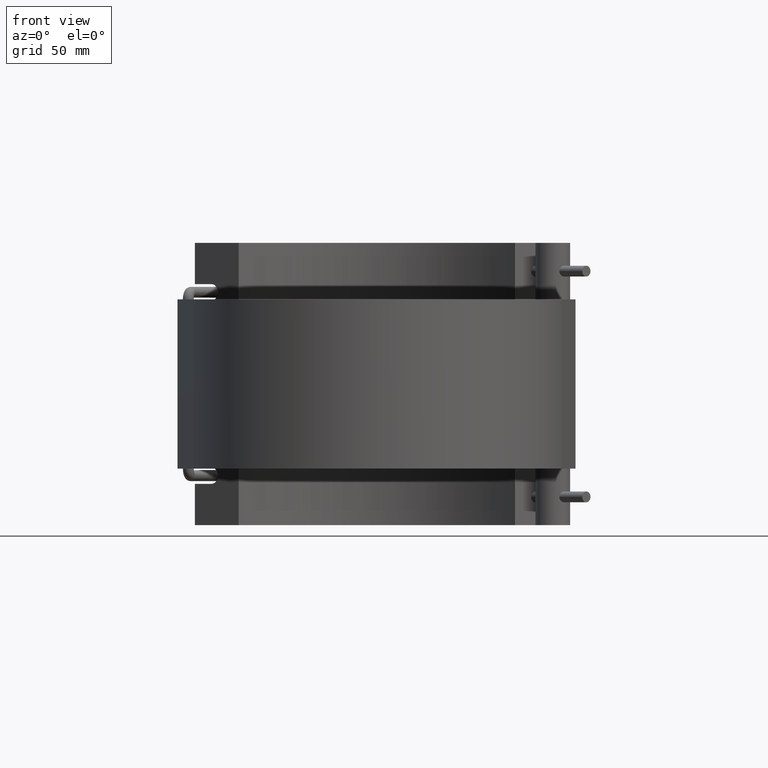
[diagram: clean part render]
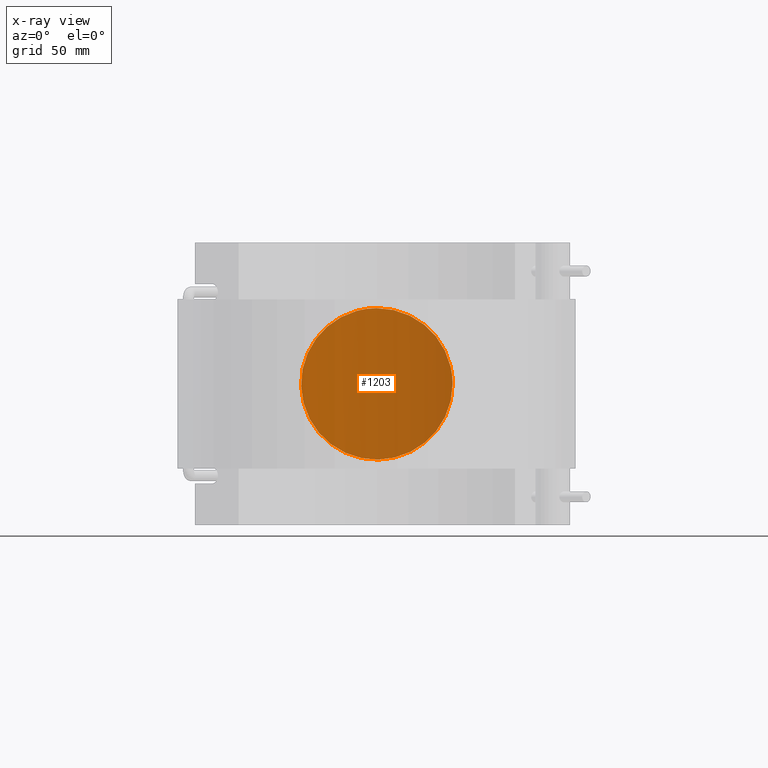
[diagram: x-ray — body ghosted, one internal face saturated and labeled with its STEP entity id]
A machine part, front view, then the same camera in x-ray: the body is ghosted and one INTERNAL B-rep face — a face not visible from any outside direction — is saturated and labeled: STEP entity #1203.
In plain terms, the highlighted cylindrical surface (partial cylindrical patch) has radius 129.375 mm, axis along (0, 0, -1).
Its self-contained STEP definition (entity closure, byte-faithful):
#307=B_SPLINE_CURVE_WITH_KNOTS('',3,(#2134,#2135,#2136,#2137,#2138,#2139,
#2140,#2141,#2142,#2143,#2144,#2145,#2146,#2147,#2148,#2149,#2150,#2151,
#2152,#2153,#2154,#2155,#2156,#2157,#2158,#2159,#2160,#2161,#2162,#2163,
#2164,#2165,#2166,#2167,#2168,#2169,#2170,#2171,#2172,#2173,#2174,#2175,
#2176,#2177,#2178,#2179,#2180,#2181,#2182,#2183,#2184,#2185,#2186,#2187,
#2188,#2189,#2190,#2191,#2192,#2193,#2194,#2195,#2196,#2197,#2198,#2199),
 .UNSPECIFIED.,.T.,.F.,(4,2,2,2,2,2,2,2,2,2,2,2,2,2,2,2,2,2,2,2,2,2,2,2,
2,2,2,2,2,2,2,2,4),(0.,0.899309219976071,1.79861843995214,2.69792765992821,
3.59723687990428,4.49593116307056,5.39462544623684,6.29331972940312,7.19201401256939,
8.09070829573567,8.98940257890195,9.88809686206823,10.7867911452345,11.6861003652106,
12.5854095851866,13.4847188051627,14.3840280251388,15.2833372451149,16.1826464650909,
17.081955685067,17.9812649050431,18.8799591882093,19.7786534713756,20.6773477545419,
21.5760420377082,22.4747363208745,23.3734306040407,24.272124887207,25.1708191703733,
26.0701283903494,26.9694376103254,27.8687468303015,28.7680560502776),
 .UNSPECIFIED.);
#369=FACE_OUTER_BOUND('',#463,.T.);
#463=EDGE_LOOP('',(#1097));
#630=VERTEX_POINT('',#2133);
#789=EDGE_CURVE('',#630,#630,#307,.T.);
#1097=ORIENTED_EDGE('',*,*,#789,.F.);
#1136=CYLINDRICAL_SURFACE('',#1320,129.375);
#1203=ADVANCED_FACE('',(#369),#1136,.F.);
#1320=AXIS2_PLACEMENT_3D('',#2132,#1651,#1652);
#1651=DIRECTION('center_axis',(0.,0.,-1.));
#1652=DIRECTION('ref_axis',(-1.,0.,0.));
#2132=CARTESIAN_POINT('Origin',(0.,0.,88.));
#2133=CARTESIAN_POINT('',(47.25,120.438067590775,0.));
#2134=CARTESIAN_POINT('Ctrl Pts',(47.25,120.438067590775,0.));
#2135=CARTESIAN_POINT('Ctrl Pts',(47.25,120.438067590775,-2.99769739992024));
#2136=CARTESIAN_POINT('Ctrl Pts',(46.9601423688959,120.553122759243,-6.0877288888063));
#2137=CARTESIAN_POINT('Ctrl Pts',(45.7504068360747,121.017398137063,-12.2153874063151));
#2138=CARTESIAN_POINT('Ctrl Pts',(44.8308991078556,121.366106286638,-15.2531262959108));
#2139=CARTESIAN_POINT('Ctrl Pts',(42.4118844592426,122.232455317223,-21.0641797091584));
#2140=CARTESIAN_POINT('Ctrl Pts',(40.9104595507312,122.749819125059,-23.8426510845055));
#2141=CARTESIAN_POINT('Ctrl Pts',(37.451482241319,123.848981720726,-28.9745438294554));
#2142=CARTESIAN_POINT('Ctrl Pts',(35.4936059998091,124.429669483943,-31.3279848223197));
#2143=CARTESIAN_POINT('Ctrl Pts',(31.3294090231067,125.542823333608,-35.4921817990221));
#2144=CARTESIAN_POINT('Ctrl Pts',(28.9766467888591,126.115486518451,-37.4498819348869));
#2145=CARTESIAN_POINT('Ctrl Pts',(23.8443863829376,127.185719468934,-40.9094726736341));
#2146=CARTESIAN_POINT('Ctrl Pts',(21.0648669829627,127.682340082888,-42.4116253369176));
#2147=CARTESIAN_POINT('Ctrl Pts',(15.2517101522392,128.506396447785,-44.831461639547));
#2148=CARTESIAN_POINT('Ctrl Pts',(12.2129466177305,128.8338845232,-45.7510675304642));
#2149=CARTESIAN_POINT('Ctrl Pts',(6.08495921802214,129.268322251608,-46.9605101824942));
#2150=CARTESIAN_POINT('Ctrl Pts',(2.99564761055426,129.375,-47.25));
#2151=CARTESIAN_POINT('Ctrl Pts',(-2.99564761055425,129.375,-47.25));
#2152=CARTESIAN_POINT('Ctrl Pts',(-6.08495921802212,129.268322251608,-46.9605101824942));
#2153=CARTESIAN_POINT('Ctrl Pts',(-12.2129466177305,128.8338845232,-45.7510675304642));
#2154=CARTESIAN_POINT('Ctrl Pts',(-15.2517101522392,128.506396447785,-44.831461639547));
#2155=CARTESIAN_POINT('Ctrl Pts',(-21.0648669829627,127.682340082888,-42.4116253369176));
#2156=CARTESIAN_POINT('Ctrl Pts',(-23.8443863829376,127.185719468934,-40.9094726736341));
#2157=CARTESIAN_POINT('Ctrl Pts',(-28.9766467888591,126.115486518451,-37.4498819348869));
#2158=CARTESIAN_POINT('Ctrl Pts',(-31.3294090231067,125.542823333608,-35.4921817990221));
#2159=CARTESIAN_POINT('Ctrl Pts',(-35.4936059998091,124.429669483943,-31.3279848223197));
#2160=CARTESIAN_POINT('Ctrl Pts',(-37.451482241319,123.848981720726,-28.9745438294554));
#2161=CARTESIAN_POINT('Ctrl Pts',(-40.9104595507312,122.749819125059,-23.8426510845055));
#2162=CARTESIAN_POINT('Ctrl Pts',(-42.4118844592426,122.232455317223,-21.0641797091584));
#2163=CARTESIAN_POINT('Ctrl Pts',(-44.8308991078556,121.366106286638,-15.2531262959108));
#2164=CARTESIAN_POINT('Ctrl Pts',(-45.7504068360747,121.017398137063,-12.2153874063151));
#2165=CARTESIAN_POINT('Ctrl Pts',(-46.9601423688958,120.553122759243,-6.08772888880631));
#2166=CARTESIAN_POINT('Ctrl Pts',(-47.25,120.438067590775,-2.99769739992024));
#2167=CARTESIAN_POINT('Ctrl Pts',(-47.25,120.438067590775,2.99769739992023));
#2168=CARTESIAN_POINT('Ctrl Pts',(-46.9601423688958,120.553122759243,6.08772888880629));
#2169=CARTESIAN_POINT('Ctrl Pts',(-45.7504068360747,121.017398137063,12.2153874063151));
#2170=CARTESIAN_POINT('Ctrl Pts',(-44.8308991078556,121.366106286638,15.2531262959108));
#2171=CARTESIAN_POINT('Ctrl Pts',(-42.4118844592426,122.232455317223,21.0641797091584));
#2172=CARTESIAN_POINT('Ctrl Pts',(-40.9104595507312,122.749819125059,23.8426510845055));
#2173=CARTESIAN_POINT('Ctrl Pts',(-37.451482241319,123.848981720726,28.9745438294554));
#2174=CARTESIAN_POINT('Ctrl Pts',(-35.4936059998091,124.429669483943,31.3279848223197));
#2175=CARTESIAN_POINT('Ctrl Pts',(-31.3294090231067,125.542823333608,35.492181799022));
#2176=CARTESIAN_POINT('Ctrl Pts',(-28.9766467888592,126.115486518451,37.4498819348869));
#2177=CARTESIAN_POINT('Ctrl Pts',(-23.8443863829376,127.185719468934,40.9094726736341));
#2178=CARTESIAN_POINT('Ctrl Pts',(-21.0648669829627,127.682340082888,42.4116253369176));
#2179=CARTESIAN_POINT('Ctrl Pts',(-15.2517101522392,128.506396447785,44.8314616395469));
#2180=CARTESIAN_POINT('Ctrl Pts',(-12.2129466177305,128.8338845232,45.7510675304642));
#2181=CARTESIAN_POINT('Ctrl Pts',(-6.08495921802215,129.268322251608,46.9605101824942));
#2182=CARTESIAN_POINT('Ctrl Pts',(-2.99564761055427,129.375,47.25));
#2183=CARTESIAN_POINT('Ctrl Pts',(2.99564761055425,129.375,47.25));
#2184=CARTESIAN_POINT('Ctrl Pts',(6.08495921802213,129.268322251608,46.9605101824942));
#2185=CARTESIAN_POINT('Ctrl Pts',(12.2129466177305,128.8338845232,45.7510675304642));
#2186=CARTESIAN_POINT('Ctrl Pts',(15.2517101522392,128.506396447785,44.831461639547));
#2187=CARTESIAN_POINT('Ctrl Pts',(21.0648669829627,127.682340082888,42.4116253369176));
#2188=CARTESIAN_POINT('Ctrl Pts',(23.8443863829376,127.185719468934,40.9094726736341));
#2189=CARTESIAN_POINT('Ctrl Pts',(28.9766467888591,126.115486518451,37.449881934887));
#2190=CARTESIAN_POINT('Ctrl Pts',(31.3294090231067,125.542823333608,35.4921817990221));
#2191=CARTESIAN_POINT('Ctrl Pts',(35.4936059998091,124.429669483943,31.3279848223197));
#2192=CARTESIAN_POINT('Ctrl Pts',(37.451482241319,123.848981720726,28.9745438294554));
#2193=CARTESIAN_POINT('Ctrl Pts',(40.9104595507312,122.749819125059,23.8426510845055));
#2194=CARTESIAN_POINT('Ctrl Pts',(42.4118844592426,122.232455317223,21.0641797091584));
#2195=CARTESIAN_POINT('Ctrl Pts',(44.8308991078556,121.366106286638,15.2531262959108));
#2196=CARTESIAN_POINT('Ctrl Pts',(45.7504068360747,121.017398137063,12.2153874063151));
#2197=CARTESIAN_POINT('Ctrl Pts',(46.9601423688958,120.553122759243,6.08772888880631));
#2198=CARTESIAN_POINT('Ctrl Pts',(47.25,120.438067590775,2.99769739992024));
#2199=CARTESIAN_POINT('Ctrl Pts',(47.25,120.438067590775,5.55111512312578E-16));